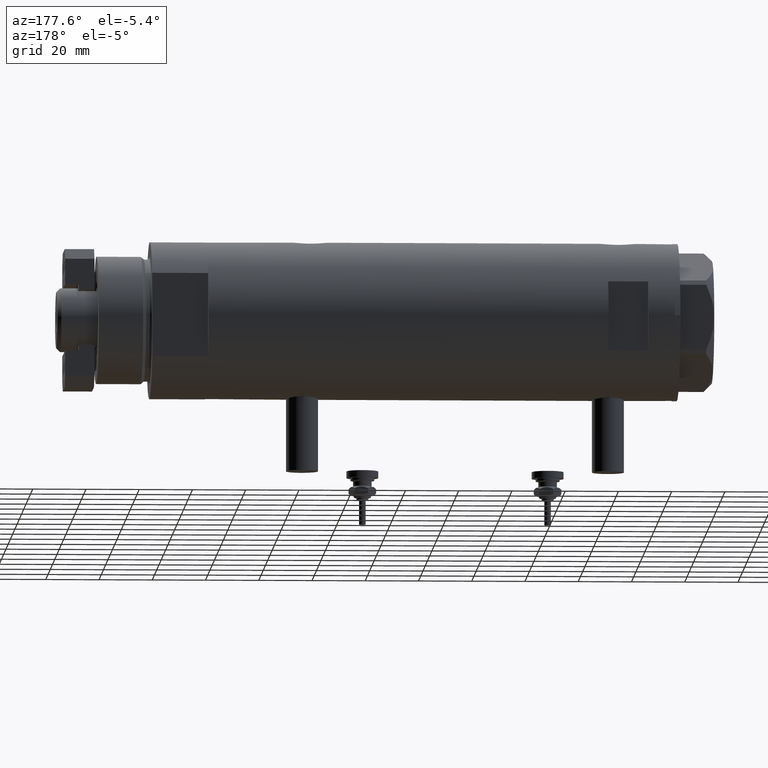
[diagram: clean part render]
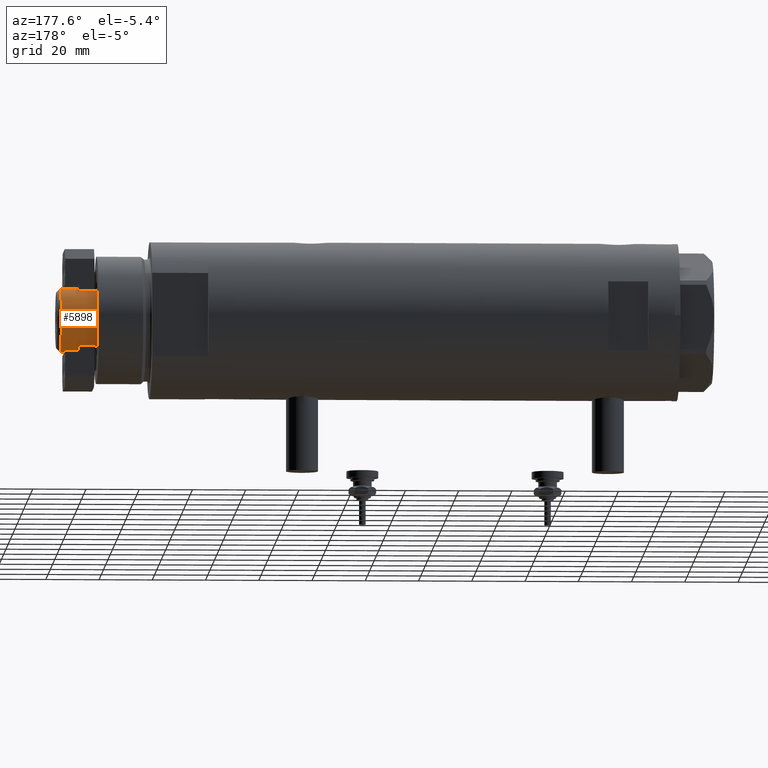
[diagram: same view with one face highlighted and labeled with its STEP entity id]
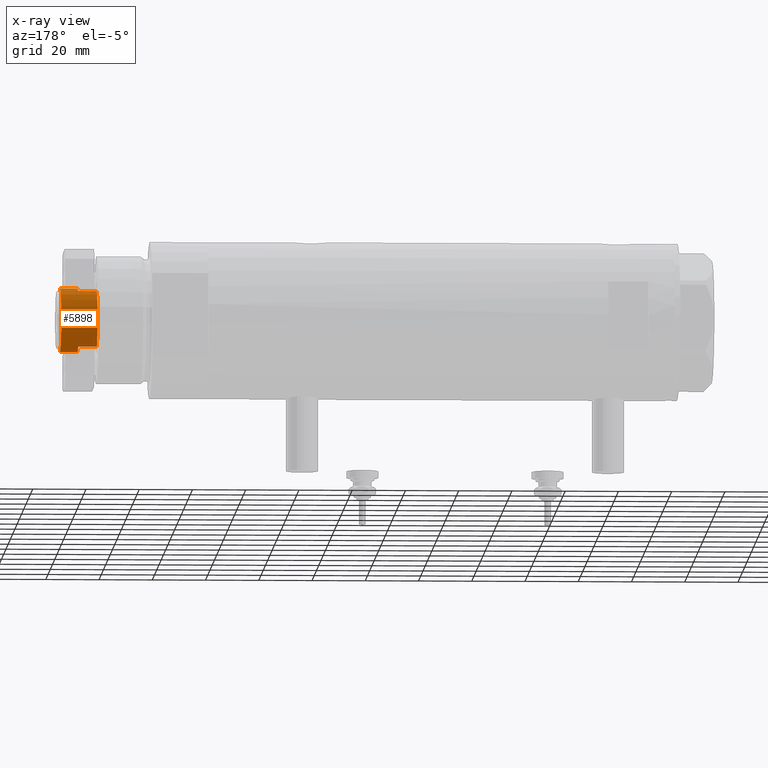
[diagram: x-ray of the same camera — body ghosted, the highlighted face saturated]
A machine part, auxiliary view. The second image highlights one B-rep face of the part: STEP entity #5898.
The next image is the same camera in x-ray: the body ghosted, the highlighted face saturated — about 0% of this face is hidden behind the body in this view.
In plain terms, the highlighted cylindrical surface (edge-blend (fillet) strip) has radius 12 mm, axis along (-1, -0, 0).
Its self-contained STEP definition (entity closure, byte-faithful):
#86 = CARTESIAN_POINT ( 'NONE',  ( 12.00000000000000000, 1.469576158976823947E-15, 206.2999999999999829 ) ) ;
#196 = DIRECTION ( 'NONE',  ( -0.000000000000000000, -0.000000000000000000, -1.000000000000000000 ) ) ;
#267 = AXIS2_PLACEMENT_3D ( 'NONE', #5062, #5977, #1998 ) ;
#271 = CARTESIAN_POINT ( 'NONE',  ( -12.00000000000000000, 0.000000000000000000, 199.6999999999999886 ) ) ;
#315 = CYLINDRICAL_SURFACE ( 'NONE', #3687, 12.00000000000000000 ) ;
#356 = VECTOR ( 'NONE', #4242, 1000.000000000000000 ) ;
#544 = DIRECTION ( 'NONE',  ( 0.000000000000000000, 0.000000000000000000, 1.000000000000000000 ) ) ;
#699 = VERTEX_POINT ( 'NONE', #1037 ) ;
#727 = CARTESIAN_POINT ( 'NONE',  ( -10.48861764008966269, 5.829999999999999183, 199.6999999999999886 ) ) ;
#866 = DIRECTION ( 'NONE',  ( 1.000000000000000000, 0.000000000000000000, 0.000000000000000000 ) ) ;
#878 = ORIENTED_EDGE ( 'NONE', *, *, #2744, .F. ) ;
#915 = VERTEX_POINT ( 'NONE', #727 ) ;
#1037 = CARTESIAN_POINT ( 'NONE',  ( -10.48861764008966446, 5.830000000000016946, 192.6999999999999886 ) ) ;
#1265 = DIRECTION ( 'NONE',  ( -1.000000000000000000, 0.000000000000000000, 0.000000000000000000 ) ) ;
#1305 = VERTEX_POINT ( 'NONE', #2049 ) ;
#1311 = VECTOR ( 'NONE', #5979, 1000.000000000000000 ) ;
#1389 = CARTESIAN_POINT ( 'NONE',  ( -10.48861764008966269, 5.829999999999999183, 199.6999999999999886 ) ) ;
#1441 = CIRCLE ( 'NONE', #2083, 12.00000000000000178 ) ;
#1456 = EDGE_CURVE ( 'NONE', #5683, #1997, #4198, .T. ) ;
#1610 = EDGE_LOOP ( 'NONE', ( #2359, #1764, #3549, #5548, #2350, #5236, #6641, #878 ) ) ;
#1651 = VERTEX_POINT ( 'NONE', #4217 ) ;
#1712 = CARTESIAN_POINT ( 'NONE',  ( 10.48861764008966269, 5.830000000000000071, 199.6999999999999886 ) ) ;
#1745 = LINE ( 'NONE', #1712, #4142 ) ;
#1764 = ORIENTED_EDGE ( 'NONE', *, *, #1456, .T. ) ;
#1997 = VERTEX_POINT ( 'NONE', #3176 ) ;
#1998 = DIRECTION ( 'NONE',  ( 1.000000000000000000, 0.000000000000000000, 0.000000000000000000 ) ) ;
#2049 = CARTESIAN_POINT ( 'NONE',  ( 10.48861764008966269, 5.830000000000000071, 192.6999999999999886 ) ) ;
#2083 = AXIS2_PLACEMENT_3D ( 'NONE', #4662, #544, #2562 ) ;
#2267 = EDGE_CURVE ( 'NONE', #1997, #6575, #4463, .T. ) ;
#2299 = AXIS2_PLACEMENT_3D ( 'NONE', #5336, #5260, #2689 ) ;
#2350 = ORIENTED_EDGE ( 'NONE', *, *, #3300, .T. ) ;
#2359 = ORIENTED_EDGE ( 'NONE', *, *, #4801, .T. ) ;
#2562 = DIRECTION ( 'NONE',  ( 1.000000000000000000, 0.000000000000000000, 0.000000000000000000 ) ) ;
#2689 = DIRECTION ( 'NONE',  ( 1.000000000000000000, 0.000000000000000000, 0.000000000000000000 ) ) ;
#2729 = VECTOR ( 'NONE', #196, 1000.000000000000000 ) ;
#2742 = CIRCLE ( 'NONE', #267, 12.00000000000001066 ) ;
#2744 = EDGE_CURVE ( 'NONE', #5980, #1651, #3705, .T. ) ;
#2760 = DIRECTION ( 'NONE',  ( -0.000000000000000000, -0.000000000000000000, -1.000000000000000000 ) ) ;
#2912 = FACE_OUTER_BOUND ( 'NONE', #1610, .T. ) ;
#3006 = CARTESIAN_POINT ( 'NONE',  ( 10.48861764008966269, 5.830000000000000071, 199.6999999999999886 ) ) ;
#3011 = AXIS2_PLACEMENT_3D ( 'NONE', #6460, #3409, #866 ) ;
#3176 = CARTESIAN_POINT ( 'NONE',  ( 12.00000000000000355, 1.469576158976824342E-15, 199.6999999999999886 ) ) ;
#3300 = EDGE_CURVE ( 'NONE', #1305, #699, #2742, .T. ) ;
#3409 = DIRECTION ( 'NONE',  ( 0.000000000000000000, 0.000000000000000000, -1.000000000000000000 ) ) ;
#3549 = ORIENTED_EDGE ( 'NONE', *, *, #2267, .T. ) ;
#3687 = AXIS2_PLACEMENT_3D ( 'NONE', #4974, #3829, #1265 ) ;
#3705 = LINE ( 'NONE', #271, #2729 ) ;
#3829 = DIRECTION ( 'NONE',  ( -0.000000000000000000, -0.000000000000000000, -1.000000000000000000 ) ) ;
#3854 = LINE ( 'NONE', #1389, #1311 ) ;
#3973 = EDGE_CURVE ( 'NONE', #915, #1651, #1441, .T. ) ;
#4029 = CARTESIAN_POINT ( 'NONE',  ( -12.00000000000000000, 0.000000000000000000, 206.2999999999999829 ) ) ;
#4142 = VECTOR ( 'NONE', #2760, 1000.000000000000000 ) ;
#4198 = LINE ( 'NONE', #6254, #356 ) ;
#4217 = CARTESIAN_POINT ( 'NONE',  ( -12.00000000000000355, 0.000000000000000000, 199.6999999999999886 ) ) ;
#4242 = DIRECTION ( 'NONE',  ( -0.000000000000000000, -0.000000000000000000, -1.000000000000000000 ) ) ;
#4415 = CIRCLE ( 'NONE', #3011, 12.00000000000000000 ) ;
#4463 = CIRCLE ( 'NONE', #2299, 12.00000000000000178 ) ;
#4594 = EDGE_CURVE ( 'NONE', #6575, #1305, #1745, .T. ) ;
#4662 = CARTESIAN_POINT ( 'NONE',  ( 0.000000000000000000, 0.000000000000000000, 199.6999999999999886 ) ) ;
#4801 = EDGE_CURVE ( 'NONE', #5980, #5683, #4415, .T. ) ;
#4974 = CARTESIAN_POINT ( 'NONE',  ( 0.000000000000000000, 0.000000000000000000, 199.6999999999999886 ) ) ;
#5062 = CARTESIAN_POINT ( 'NONE',  ( 0.000000000000000000, 0.000000000000000000, 192.6999999999999886 ) ) ;
#5236 = ORIENTED_EDGE ( 'NONE', *, *, #6324, .F. ) ;
#5260 = DIRECTION ( 'NONE',  ( 0.000000000000000000, 0.000000000000000000, 1.000000000000000000 ) ) ;
#5336 = CARTESIAN_POINT ( 'NONE',  ( 0.000000000000000000, 0.000000000000000000, 199.6999999999999886 ) ) ;
#5548 = ORIENTED_EDGE ( 'NONE', *, *, #4594, .T. ) ;
#5683 = VERTEX_POINT ( 'NONE', #86 ) ;
#5898 = ADVANCED_FACE ( 'NONE', ( #2912 ), #315, .T. ) ;
#5977 = DIRECTION ( 'NONE',  ( 0.000000000000000000, 0.000000000000000000, 1.000000000000000000 ) ) ;
#5979 = DIRECTION ( 'NONE',  ( -0.000000000000000000, -0.000000000000000000, -1.000000000000000000 ) ) ;
#5980 = VERTEX_POINT ( 'NONE', #4029 ) ;
#6254 = CARTESIAN_POINT ( 'NONE',  ( 12.00000000000000000, 1.469576158976823947E-15, 199.6999999999999886 ) ) ;
#6324 = EDGE_CURVE ( 'NONE', #915, #699, #3854, .T. ) ;
#6460 = CARTESIAN_POINT ( 'NONE',  ( 0.000000000000000000, 0.000000000000000000, 206.2999999999999829 ) ) ;
#6575 = VERTEX_POINT ( 'NONE', #3006 ) ;
#6641 = ORIENTED_EDGE ( 'NONE', *, *, #3973, .T. ) ;